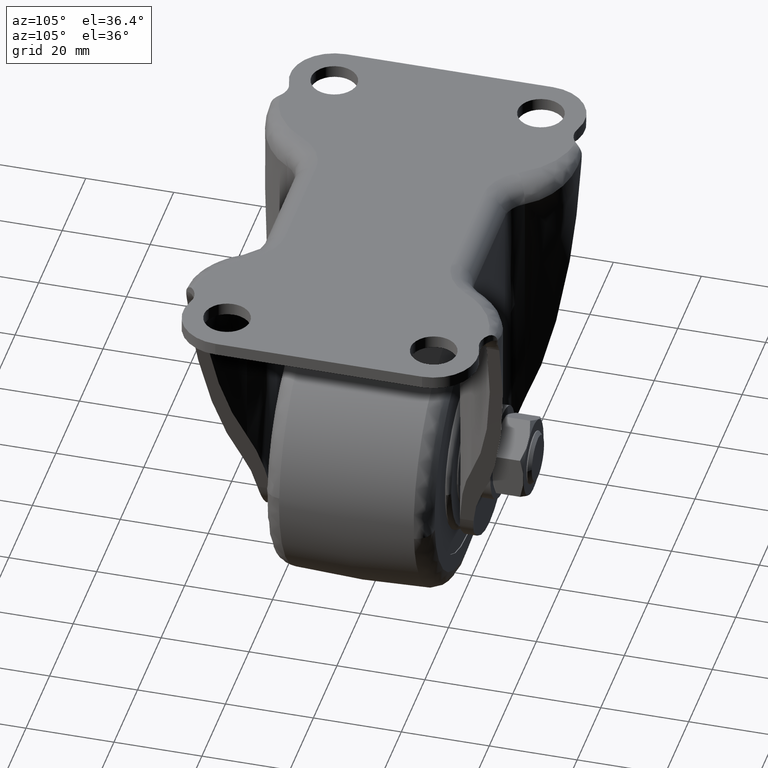
[diagram: clean part render]
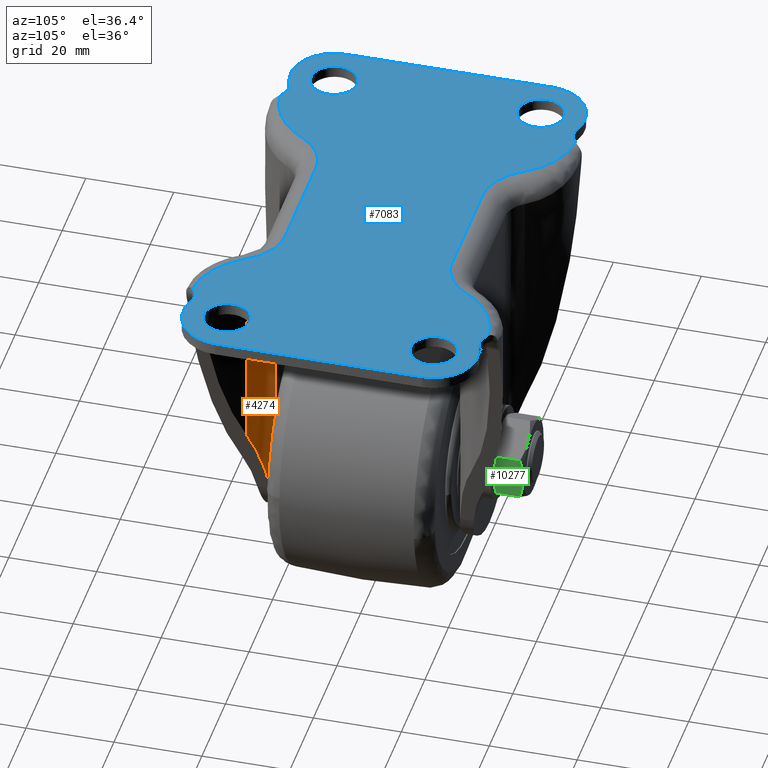
[diagram: same view with three faces highlighted in distinct colors, each labeled with its STEP entity id]
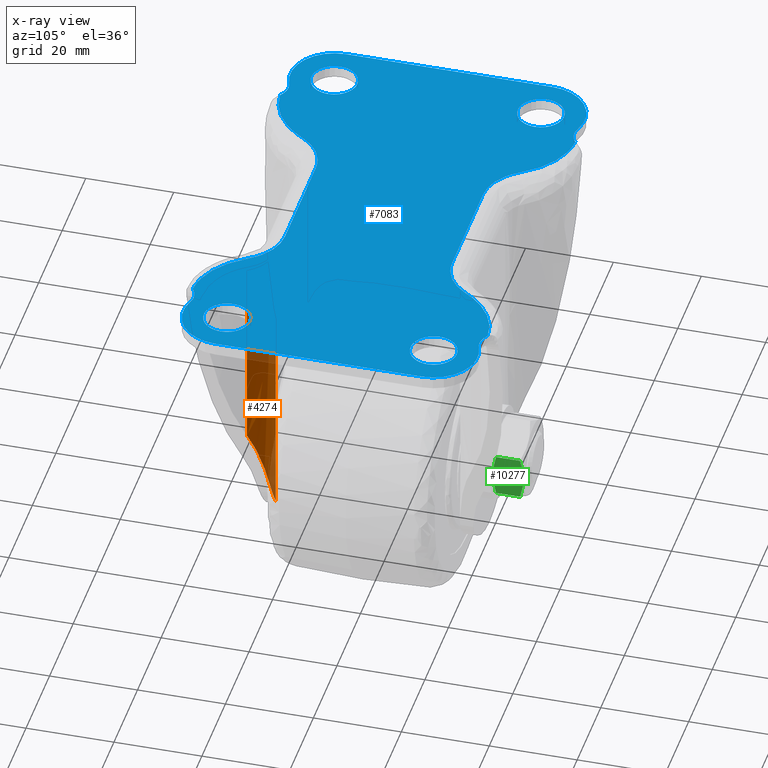
[diagram: x-ray of the same camera — body ghosted, the three highlighted faces saturated]
A machine part, auxiliary view with three faces highlighted in distinct colors.
The next image is the same camera in x-ray (body ghosted, the three faces saturated) — at least one of them is partly hidden behind the body in this view.
Their STEP definitions:

[orange] entity #4274 — the highlighted face is a freeform B-spline surface patch.
#3651=CARTESIAN_POINT('',(13.112529342704841,-21.100000000000001,-72.615372478840001));
#3652=VERTEX_POINT('',#3651);
#3653=CARTESIAN_POINT('',(15.788895217503899,-21.489058556165649,-67.391547508985795));
#3654=VERTEX_POINT('',#3653);
#3655=CARTESIAN_POINT('',(13.112529342704800,-21.100000000000001,-72.615372478839987));
#3656=CARTESIAN_POINT('',(13.262377682579061,-21.100000000000001,-72.419188794697448));
#3657=CARTESIAN_POINT('',(13.408182264475281,-21.103580292559009,-72.219176181642979));
#3658=CARTESIAN_POINT('',(13.620687496377720,-21.113477545811229,-71.913359515759140));
#3659=CARTESIAN_POINT('',(13.690562948580830,-21.117538128247290,-71.810337121695397));
#3660=CARTESIAN_POINT('',(13.827549460056209,-21.126982350587500,-71.603376034765247));
#3661=CARTESIAN_POINT('',(13.894727559515809,-21.132367323510909,-71.499346473165232));
#3662=CARTESIAN_POINT('',(14.224135809730280,-21.162208652223981,-70.976463162988836));
#3663=CARTESIAN_POINT('',(14.466970524330190,-21.195344305237079,-70.549420609718027));
#3664=CARTESIAN_POINT('',(14.912790391186601,-21.271230381579251,-69.677820661432634));
#3665=CARTESIAN_POINT('',(15.115770835520641,-21.314004683583459,-69.233263107492888));
#3666=CARTESIAN_POINT('',(15.482194059944909,-21.401638853088269,-68.326144136321290));
#3667=CARTESIAN_POINT('',(15.645637757706330,-21.446509242189720,-67.863584024807125));
#3668=CARTESIAN_POINT('',(15.788895217503921,-21.489058556165670,-67.391547508985795));
#3669=B_SPLINE_CURVE_WITH_KNOTS('',3,(#3655,#3656,#3657,#3658,#3659,#3660,#3661,#3662,#3663,#3664,#3665,#3666,#3667,#3668),.UNSPECIFIED.,.F.,.U.,(4,2,2,2,2,2,4),(0.0,0.124999999999994,0.187499999999991,0.249999999999988,0.499999999999992,0.749999999999996,1.0),.UNSPECIFIED.);
#3670=EDGE_CURVE('',#3652,#3654,#3669,.T.);
#3914=CARTESIAN_POINT('',(21.080107333667101,-25.512244897959199,-49.956885919186902));
#3915=VERTEX_POINT('',#3914);
#3916=CARTESIAN_POINT('',(21.080107333667080,-25.512244897959199,-49.956885919186860));
#3917=CARTESIAN_POINT('',(19.194841077492001,-22.500668422671076,-56.168880158214648));
#3918=CARTESIAN_POINT('',(15.788895217503891,-21.489058556165670,-67.391547508985795));
#3926=(BOUNDED_CURVE()B_SPLINE_CURVE(2,(#3916,#3917,#3918),.UNSPECIFIED.,.F.,.U.)CURVE()GEOMETRIC_REPRESENTATION_ITEM()QUASI_UNIFORM_CURVE()RATIONAL_B_SPLINE_CURVE((1.0,0.935409879223287,1.0))REPRESENTATION_ITEM(''));
#3927=EDGE_CURVE('',#3915,#3654,#3926,.T.);
#4233=CARTESIAN_POINT('',(12.866466028610819,-21.103221145229771,-74.308256790811001));
#4234=CARTESIAN_POINT('',(12.866466028610819,-21.103221145229771,-3.164793580229727));
#4235=CARTESIAN_POINT('',(18.512620388153156,-20.955371390003265,-74.308256790811001));
#4236=CARTESIAN_POINT('',(18.512620388153156,-20.955371390003265,-3.164793580229727));
#4237=CARTESIAN_POINT('',(21.293872884539891,-25.871218535027410,-74.308256790811001));
#4238=CARTESIAN_POINT('',(21.293872884539891,-25.871218535027410,-3.164793580229727));
#4246=(BOUNDED_SURFACE()B_SPLINE_SURFACE(1,2,((#4233,#4235,#4237),(#4234,#4236,#4238)),.UNSPECIFIED.,.F.,.F.,.U.)B_SPLINE_SURFACE_WITH_KNOTS((2,2),(3,3),(0.0,71.143463210581288),(0.0,10.427402856649930),.UNSPECIFIED.)GEOMETRIC_REPRESENTATION_ITEM()RATIONAL_B_SPLINE_SURFACE(((1.0,0.857167300702112,1.0),(1.0,0.857167300702112,1.0)))REPRESENTATION_ITEM('')SURFACE());
#4247=CARTESIAN_POINT('',(13.112529342704841,-21.100000000000001,-4.900000000000000));
#4248=VERTEX_POINT('',#4247);
#4249=CARTESIAN_POINT('',(13.112529342704841,-21.100000000000001,-72.615372478840001));
#4250=CARTESIAN_POINT('',(13.112529342704841,-21.100000000000001,-4.900000000000000));
#4251=QUASI_UNIFORM_CURVE('',1,(#4249,#4250),.UNSPECIFIED.,.F.,.U.);
#4252=EDGE_CURVE('',#3652,#4248,#4251,.T.);
#4253=ORIENTED_EDGE('',*,*,#4252,.T.);
#4254=CARTESIAN_POINT('',(21.080107333667101,-25.512244897959199,-5.0));
#4255=VERTEX_POINT('',#4254);
#4256=CARTESIAN_POINT('',(13.112529342704860,-21.100000000000001,-4.900000000000016));
#4257=CARTESIAN_POINT('',(14.697171330926320,-21.100000000000001,-4.916666666666682));
#4258=CARTESIAN_POINT('',(16.280106511327521,-21.509029801425509,-4.933333333333346));
#4259=CARTESIAN_POINT('',(19.052652437136089,-23.044396211316030,-4.966666666666675));
#4260=CARTESIAN_POINT('',(20.239276890937319,-24.169079086373230,-4.983333333333340));
#4261=CARTESIAN_POINT('',(21.080107333667069,-25.512244897959182,-5.000000000000004));
#4262=B_SPLINE_CURVE_WITH_KNOTS('',3,(#4256,#4257,#4258,#4259,#4260,#4261),.UNSPECIFIED.,.F.,.U.,(4,2,4),(0.0,0.500000000000000,1.0),.UNSPECIFIED.);
#4263=EDGE_CURVE('',#4248,#4255,#4262,.T.);
#4264=ORIENTED_EDGE('',*,*,#4263,.T.);
#4265=CARTESIAN_POINT('',(21.080107333667101,-25.512244897959199,-49.956885919186902));
#4266=CARTESIAN_POINT('',(21.080107333667101,-25.512244897959199,-5.0));
#4267=QUASI_UNIFORM_CURVE('',1,(#4265,#4266),.UNSPECIFIED.,.F.,.U.);
#4268=EDGE_CURVE('',#3915,#4255,#4267,.T.);
#4269=ORIENTED_EDGE('',*,*,#4268,.F.);
#4270=ORIENTED_EDGE('',*,*,#3927,.T.);
#4271=ORIENTED_EDGE('',*,*,#3670,.F.);
#4272=EDGE_LOOP('',(#4253,#4264,#4269,#4270,#4271));
#4273=FACE_OUTER_BOUND('',#4272,.T.);
#4274=ADVANCED_FACE('',(#4273),#4246,.T.);

[blue] entity #7083 — the highlighted face is a freeform B-spline surface patch.
#2559=CARTESIAN_POINT('',(-45.820409832896729,18.259792308305919,1.318390E-016));
#2560=VERTEX_POINT('',#2559);
#2561=CARTESIAN_POINT('',(-40.249905000000012,23.500000000000000,0.0));
#2562=VERTEX_POINT('',#2561);
#2563=CARTESIAN_POINT('',(-45.820409832896722,18.259792308305911,0.0));
#2564=CARTESIAN_POINT('',(-45.660307007487432,18.250000000000000,0.0));
#2565=CARTESIAN_POINT('',(-45.499904999999998,18.250000000000000,0.0));
#2566=CARTESIAN_POINT('',(-40.249905000000012,18.250000000000000,0.0));
#2567=CARTESIAN_POINT('',(-40.249905000000012,23.500000000000000,0.0));
#2575=(BOUNDED_CURVE()B_SPLINE_CURVE(2,(#2563,#2564,#2565,#2566,#2567),.UNSPECIFIED.,.F.,.U.)B_SPLINE_CURVE_WITH_KNOTS((3,2,3),(0.239332962230815,0.250000000000000,0.500000000000000),.UNSPECIFIED.)CURVE()GEOMETRIC_REPRESENTATION_ITEM()RATIONAL_B_SPLINE_CURVE((0.976072041649297,0.987502787890315,1.0,0.707106781186547,1.0))REPRESENTATION_ITEM(''));
#2576=EDGE_CURVE('',#2560,#2562,#2575,.T.);
#2578=CARTESIAN_POINT('',(-45.179400167103267,28.740207691694081,1.318390E-016));
#2579=VERTEX_POINT('',#2578);
#2580=CARTESIAN_POINT('',(-40.249905000000012,23.500000000000000,0.0));
#2581=CARTESIAN_POINT('',(-40.249904999999998,28.438706850935048,0.0));
#2582=CARTESIAN_POINT('',(-45.179400167103260,28.740207691694089,0.0));
#2590=(BOUNDED_CURVE()B_SPLINE_CURVE(2,(#2580,#2581,#2582),.UNSPECIFIED.,.F.,.U.)B_SPLINE_CURVE_WITH_KNOTS((3,3),(0.500000000000000,0.739332962230815),.UNSPECIFIED.)CURVE()GEOMETRIC_REPRESENTATION_ITEM()RATIONAL_B_SPLINE_CURVE((1.0,0.719603993296233,0.976072041649297))REPRESENTATION_ITEM(''));
#2591=EDGE_CURVE('',#2562,#2579,#2590,.T.);
#2658=CARTESIAN_POINT('',(-50.749904999999998,23.500000000000000,0.0));
#2659=VERTEX_POINT('',#2658);
#2660=CARTESIAN_POINT('',(-50.749904999999998,23.500000000000000,0.0));
#2661=CARTESIAN_POINT('',(-50.749904999999984,18.561293149064948,0.0));
#2662=CARTESIAN_POINT('',(-45.820409832896736,18.259792308305915,0.0));
#2670=(BOUNDED_CURVE()B_SPLINE_CURVE(2,(#2660,#2661,#2662),.UNSPECIFIED.,.F.,.U.)B_SPLINE_CURVE_WITH_KNOTS((3,3),(0.0,0.239332962230815),.UNSPECIFIED.)CURVE()GEOMETRIC_REPRESENTATION_ITEM()RATIONAL_B_SPLINE_CURVE((1.0,0.719603993296233,0.976072041649297))REPRESENTATION_ITEM(''));
#2671=EDGE_CURVE('',#2659,#2560,#2670,.T.);
#2705=CARTESIAN_POINT('',(-45.179400167103267,28.740207691694085,0.0));
#2706=CARTESIAN_POINT('',(-45.339502992512564,28.750000000000000,0.0));
#2707=CARTESIAN_POINT('',(-45.499904999999998,28.750000000000000,0.0));
#2708=CARTESIAN_POINT('',(-50.749904999999984,28.750000000000000,0.0));
#2709=CARTESIAN_POINT('',(-50.749904999999998,23.500000000000000,0.0));
#2717=(BOUNDED_CURVE()B_SPLINE_CURVE(2,(#2705,#2706,#2707,#2708,#2709),.UNSPECIFIED.,.F.,.U.)B_SPLINE_CURVE_WITH_KNOTS((3,2,3),(0.739332962230815,0.750000000000000,1.0),.UNSPECIFIED.)CURVE()GEOMETRIC_REPRESENTATION_ITEM()RATIONAL_B_SPLINE_CURVE((0.976072041649297,0.987502787890314,1.0,0.707106781186547,1.0))REPRESENTATION_ITEM(''));
#2718=EDGE_CURVE('',#2579,#2659,#2717,.T.);
#2741=CARTESIAN_POINT('',(-45.820409832896729,-28.740207691694081,1.318390E-016));
#2742=VERTEX_POINT('',#2741);
#2743=CARTESIAN_POINT('',(-40.249905000000012,-23.500000000000000,0.0));
#2744=VERTEX_POINT('',#2743);
#2745=CARTESIAN_POINT('',(-45.820409832896722,-28.740207691694078,0.0));
#2746=CARTESIAN_POINT('',(-45.660307007487432,-28.749999999999996,0.0));
#2747=CARTESIAN_POINT('',(-45.499904999999998,-28.750000000000000,0.0));
#2748=CARTESIAN_POINT('',(-40.249905000000012,-28.750000000000000,0.0));
#2749=CARTESIAN_POINT('',(-40.249905000000012,-23.500000000000000,0.0));
#2757=(BOUNDED_CURVE()B_SPLINE_CURVE(2,(#2745,#2746,#2747,#2748,#2749),.UNSPECIFIED.,.F.,.U.)B_SPLINE_CURVE_WITH_KNOTS((3,2,3),(0.239332962230815,0.250000000000000,0.500000000000000),.UNSPECIFIED.)CURVE()GEOMETRIC_REPRESENTATION_ITEM()RATIONAL_B_SPLINE_CURVE((0.976072041649297,0.987502787890315,1.0,0.707106781186547,1.0))REPRESENTATION_ITEM(''));
#2758=EDGE_CURVE('',#2742,#2744,#2757,.T.);
#2760=CARTESIAN_POINT('',(-45.179400167103267,-18.259792308305919,1.318390E-016));
#2761=VERTEX_POINT('',#2760);
#2762=CARTESIAN_POINT('',(-40.249905000000012,-23.500000000000000,0.0));
#2763=CARTESIAN_POINT('',(-40.249904999999998,-18.561293149064937,0.0));
#2764=CARTESIAN_POINT('',(-45.179400167103260,-18.259792308305922,0.0));
#2772=(BOUNDED_CURVE()B_SPLINE_CURVE(2,(#2762,#2763,#2764),.UNSPECIFIED.,.F.,.U.)B_SPLINE_CURVE_WITH_KNOTS((3,3),(0.500000000000000,0.739332962230815),.UNSPECIFIED.)CURVE()GEOMETRIC_REPRESENTATION_ITEM()RATIONAL_B_SPLINE_CURVE((1.0,0.719603993296233,0.976072041649297))REPRESENTATION_ITEM(''));
#2773=EDGE_CURVE('',#2744,#2761,#2772,.T.);
#2840=CARTESIAN_POINT('',(-50.749904999999998,-23.500000000000000,0.0));
#2841=VERTEX_POINT('',#2840);
#2842=CARTESIAN_POINT('',(-50.749904999999998,-23.500000000000000,0.0));
#2843=CARTESIAN_POINT('',(-50.749904999999984,-28.438706850935045,0.0));
#2844=CARTESIAN_POINT('',(-45.820409832896736,-28.740207691694085,0.0));
#2852=(BOUNDED_CURVE()B_SPLINE_CURVE(2,(#2842,#2843,#2844),.UNSPECIFIED.,.F.,.U.)B_SPLINE_CURVE_WITH_KNOTS((3,3),(0.0,0.239332962230815),.UNSPECIFIED.)CURVE()GEOMETRIC_REPRESENTATION_ITEM()RATIONAL_B_SPLINE_CURVE((1.0,0.719603993296233,0.976072041649297))REPRESENTATION_ITEM(''));
#2853=EDGE_CURVE('',#2841,#2742,#2852,.T.);
#2887=CARTESIAN_POINT('',(-45.179400167103267,-18.259792308305915,0.0));
#2888=CARTESIAN_POINT('',(-45.339502992512564,-18.250000000000000,0.0));
#2889=CARTESIAN_POINT('',(-45.499904999999998,-18.250000000000000,0.0));
#2890=CARTESIAN_POINT('',(-50.749904999999984,-18.250000000000000,0.0));
#2891=CARTESIAN_POINT('',(-50.749904999999998,-23.500000000000000,0.0));
#2899=(BOUNDED_CURVE()B_SPLINE_CURVE(2,(#2887,#2888,#2889,#2890,#2891),.UNSPECIFIED.,.F.,.U.)B_SPLINE_CURVE_WITH_KNOTS((3,2,3),(0.739332962230815,0.750000000000000,1.0),.UNSPECIFIED.)CURVE()GEOMETRIC_REPRESENTATION_ITEM()RATIONAL_B_SPLINE_CURVE((0.976072041649297,0.987502787890314,1.0,0.707106781186547,1.0))REPRESENTATION_ITEM(''));
#2900=EDGE_CURVE('',#2761,#2841,#2899,.T.);
#2923=CARTESIAN_POINT('',(45.179590167103363,18.259792308305919,1.318390E-016));
#2924=VERTEX_POINT('',#2923);
#2925=CARTESIAN_POINT('',(50.750095000000087,23.500000000000000,0.0));
#2926=VERTEX_POINT('',#2925);
#2927=CARTESIAN_POINT('',(45.179590167103363,18.259792308305915,0.0));
#2928=CARTESIAN_POINT('',(45.339692992512667,18.250000000000000,0.0));
#2929=CARTESIAN_POINT('',(45.500095000000087,18.250000000000000,0.0));
#2930=CARTESIAN_POINT('',(50.750095000000108,18.250000000000000,0.0));
#2931=CARTESIAN_POINT('',(50.750095000000087,23.500000000000000,0.0));
#2939=(BOUNDED_CURVE()B_SPLINE_CURVE(2,(#2927,#2928,#2929,#2930,#2931),.UNSPECIFIED.,.F.,.U.)B_SPLINE_CURVE_WITH_KNOTS((3,2,3),(0.239332962230815,0.250000000000000,0.500000000000000),.UNSPECIFIED.)CURVE()GEOMETRIC_REPRESENTATION_ITEM()RATIONAL_B_SPLINE_CURVE((0.976072041649297,0.987502787890314,1.0,0.707106781186547,1.0))REPRESENTATION_ITEM(''));
#2940=EDGE_CURVE('',#2924,#2926,#2939,.T.);
#2942=CARTESIAN_POINT('',(45.820599832896832,28.740207691694081,1.318390E-016));
#2943=VERTEX_POINT('',#2942);
#2944=CARTESIAN_POINT('',(50.750095000000087,23.500000000000000,0.0));
#2945=CARTESIAN_POINT('',(50.750095000000101,28.438706850935063,0.0));
#2946=CARTESIAN_POINT('',(45.820599832896811,28.740207691694085,0.0));
#2954=(BOUNDED_CURVE()B_SPLINE_CURVE(2,(#2944,#2945,#2946),.UNSPECIFIED.,.F.,.U.)B_SPLINE_CURVE_WITH_KNOTS((3,3),(0.500000000000000,0.739332962230815),.UNSPECIFIED.)CURVE()GEOMETRIC_REPRESENTATION_ITEM()RATIONAL_B_SPLINE_CURVE((1.0,0.719603993296233,0.976072041649298))REPRESENTATION_ITEM(''));
#2955=EDGE_CURVE('',#2926,#2943,#2954,.T.);
#3022=CARTESIAN_POINT('',(40.250095000000087,23.500000000000000,0.0));
#3023=VERTEX_POINT('',#3022);
#3024=CARTESIAN_POINT('',(40.250095000000087,23.500000000000000,0.0));
#3025=CARTESIAN_POINT('',(40.250095000000087,18.561293149064934,0.0));
#3026=CARTESIAN_POINT('',(45.179590167103363,18.259792308305911,0.0));
#3034=(BOUNDED_CURVE()B_SPLINE_CURVE(2,(#3024,#3025,#3026),.UNSPECIFIED.,.F.,.U.)B_SPLINE_CURVE_WITH_KNOTS((3,3),(0.0,0.239332962230815),.UNSPECIFIED.)CURVE()GEOMETRIC_REPRESENTATION_ITEM()RATIONAL_B_SPLINE_CURVE((1.0,0.719603993296233,0.976072041649298))REPRESENTATION_ITEM(''));
#3035=EDGE_CURVE('',#3023,#2924,#3034,.T.);
#3069=CARTESIAN_POINT('',(45.820599832896839,28.740207691694089,0.0));
#3070=CARTESIAN_POINT('',(45.660497007487528,28.750000000000007,0.0));
#3071=CARTESIAN_POINT('',(45.500095000000087,28.750000000000000,0.0));
#3072=CARTESIAN_POINT('',(40.250095000000087,28.750000000000000,0.0));
#3073=CARTESIAN_POINT('',(40.250095000000087,23.500000000000000,0.0));
#3081=(BOUNDED_CURVE()B_SPLINE_CURVE(2,(#3069,#3070,#3071,#3072,#3073),.UNSPECIFIED.,.F.,.U.)B_SPLINE_CURVE_WITH_KNOTS((3,2,3),(0.739332962230815,0.750000000000000,1.0),.UNSPECIFIED.)CURVE()GEOMETRIC_REPRESENTATION_ITEM()RATIONAL_B_SPLINE_CURVE((0.976072041649297,0.987502787890315,1.0,0.707106781186547,1.0))REPRESENTATION_ITEM(''));
#3082=EDGE_CURVE('',#2943,#3023,#3081,.T.);
#3105=CARTESIAN_POINT('',(45.179590167103363,-28.740207691694089,1.318390E-016));
#3106=VERTEX_POINT('',#3105);
#3107=CARTESIAN_POINT('',(50.750095000000087,-23.500000000000000,0.0));
#3108=VERTEX_POINT('',#3107);
#3109=CARTESIAN_POINT('',(45.179590167103363,-28.740207691694085,0.0));
#3110=CARTESIAN_POINT('',(45.339692992512667,-28.750000000000000,0.0));
#3111=CARTESIAN_POINT('',(45.500095000000087,-28.750000000000000,0.0));
#3112=CARTESIAN_POINT('',(50.750095000000108,-28.750000000000000,0.0));
#3113=CARTESIAN_POINT('',(50.750095000000087,-23.500000000000000,0.0));
#3121=(BOUNDED_CURVE()B_SPLINE_CURVE(2,(#3109,#3110,#3111,#3112,#3113),.UNSPECIFIED.,.F.,.U.)B_SPLINE_CURVE_WITH_KNOTS((3,2,3),(0.239332962230815,0.250000000000000,0.500000000000000),.UNSPECIFIED.)CURVE()GEOMETRIC_REPRESENTATION_ITEM()RATIONAL_B_SPLINE_CURVE((0.976072041649297,0.987502787890314,1.0,0.707106781186547,1.0))REPRESENTATION_ITEM(''));
#3122=EDGE_CURVE('',#3106,#3108,#3121,.T.);
#3124=CARTESIAN_POINT('',(45.820599832896832,-18.259792308305919,1.318390E-016));
#3125=VERTEX_POINT('',#3124);
#3126=CARTESIAN_POINT('',(50.750095000000087,-23.500000000000000,0.0));
#3127=CARTESIAN_POINT('',(50.750095000000101,-18.561293149064934,0.0));
#3128=CARTESIAN_POINT('',(45.820599832896811,-18.259792308305911,0.0));
#3136=(BOUNDED_CURVE()B_SPLINE_CURVE(2,(#3126,#3127,#3128),.UNSPECIFIED.,.F.,.U.)B_SPLINE_CURVE_WITH_KNOTS((3,3),(0.500000000000000,0.739332962230815),.UNSPECIFIED.)CURVE()GEOMETRIC_REPRESENTATION_ITEM()RATIONAL_B_SPLINE_CURVE((1.0,0.719603993296233,0.976072041649298))REPRESENTATION_ITEM(''));
#3137=EDGE_CURVE('',#3108,#3125,#3136,.T.);
#3204=CARTESIAN_POINT('',(40.250095000000087,-23.500000000000000,0.0));
#3205=VERTEX_POINT('',#3204);
#3206=CARTESIAN_POINT('',(40.250095000000087,-23.500000000000000,0.0));
#3207=CARTESIAN_POINT('',(40.250095000000087,-28.438706850935063,0.0));
#3208=CARTESIAN_POINT('',(45.179590167103385,-28.740207691694089,0.0));
#3216=(BOUNDED_CURVE()B_SPLINE_CURVE(2,(#3206,#3207,#3208),.UNSPECIFIED.,.F.,.U.)B_SPLINE_CURVE_WITH_KNOTS((3,3),(0.0,0.239332962230815),.UNSPECIFIED.)CURVE()GEOMETRIC_REPRESENTATION_ITEM()RATIONAL_B_SPLINE_CURVE((1.0,0.719603993296233,0.976072041649298))REPRESENTATION_ITEM(''));
#3217=EDGE_CURVE('',#3205,#3106,#3216,.T.);
#3251=CARTESIAN_POINT('',(45.820599832896839,-18.259792308305922,0.0));
#3252=CARTESIAN_POINT('',(45.660497007487528,-18.250000000000000,0.0));
#3253=CARTESIAN_POINT('',(45.500095000000087,-18.250000000000000,0.0));
#3254=CARTESIAN_POINT('',(40.250095000000087,-18.250000000000000,0.0));
#3255=CARTESIAN_POINT('',(40.250095000000087,-23.500000000000000,0.0));
#3263=(BOUNDED_CURVE()B_SPLINE_CURVE(2,(#3251,#3252,#3253,#3254,#3255),.UNSPECIFIED.,.F.,.U.)B_SPLINE_CURVE_WITH_KNOTS((3,2,3),(0.739332962230815,0.750000000000000,1.0),.UNSPECIFIED.)CURVE()GEOMETRIC_REPRESENTATION_ITEM()RATIONAL_B_SPLINE_CURVE((0.976072041649297,0.987502787890315,1.0,0.707106781186547,1.0))REPRESENTATION_ITEM(''));
#3264=EDGE_CURVE('',#3125,#3205,#3263,.T.);
#4358=CARTESIAN_POINT('',(-55.499905000000012,-23.500000000000000,0.0));
#4359=VERTEX_POINT('',#4358);
#4360=CARTESIAN_POINT('',(-41.883508983008703,-32.823179628913557,0.0));
#4361=VERTEX_POINT('',#4360);
#4362=CARTESIAN_POINT('',(-55.499905000000012,-23.500000000000000,0.0));
#4363=CARTESIAN_POINT('',(-55.500278196082867,-24.460316381030051,0.0));
#4364=CARTESIAN_POINT('',(-55.246789352321443,-26.203864384008462,0.0));
#4365=CARTESIAN_POINT('',(-54.403331376298603,-28.167840847522982,0.0));
#4366=CARTESIAN_POINT('',(-53.432262029972932,-29.649935437684441,0.0));
#4367=CARTESIAN_POINT('',(-52.470065464621001,-30.729882750802961,0.0));
#4368=CARTESIAN_POINT('',(-51.213360542768477,-31.753957458831369,0.0));
#4369=CARTESIAN_POINT('',(-49.640075794261918,-32.680564839039533,0.0));
#4370=CARTESIAN_POINT('',(-47.687593279586252,-33.343791788695583,0.0));
#4371=CARTESIAN_POINT('',(-45.742000096122993,-33.546333433216169,0.0));
#4372=CARTESIAN_POINT('',(-43.821192178795613,-33.417867727184912,0.0));
#4373=CARTESIAN_POINT('',(-42.613832534247749,-33.106666759145043,0.0));
#4374=CARTESIAN_POINT('',(-41.883508983008703,-32.823179628913557,0.0));
#4375=B_SPLINE_CURVE_WITH_KNOTS('',3,(#4362,#4363,#4364,#4365,#4366,#4367,#4368,#4369,#4370,#4371,#4372,#4373,#4374),.UNSPECIFIED.,.F.,.U.,(4,1,1,1,1,1,1,1,1,1,4),(0.000000104842020,2.880891366599464,5.231136969330979,6.368343491444483,8.187879028276006,9.552532496265286,11.220401519337230,13.646434593703489,15.693418021507650,17.058079484506351,19.408269017228701),.UNSPECIFIED.);
#4376=EDGE_CURVE('',#4359,#4361,#4375,.T.);
#4463=CARTESIAN_POINT('',(-37.161353402992098,-33.556329244536649,0.0));
#4464=VERTEX_POINT('',#4463);
#4485=CARTESIAN_POINT('',(-37.161353402992091,-33.556329244536649,0.0));
#4486=CARTESIAN_POINT('',(-39.310566767351574,-31.825153326030541,0.0));
#4487=CARTESIAN_POINT('',(-41.883508983008703,-32.823179628913543,0.0));
#4495=(BOUNDED_CURVE()B_SPLINE_CURVE(2,(#4485,#4486,#4487),.UNSPECIFIED.,.F.,.U.)CURVE()GEOMETRIC_REPRESENTATION_ITEM()QUASI_UNIFORM_CURVE()RATIONAL_B_SPLINE_CURVE((1.0,0.865797901622570,1.0))REPRESENTATION_ITEM(''));
#4496=EDGE_CURVE('',#4464,#4361,#4495,.T.);
#4516=CARTESIAN_POINT('',(-41.883508782540112,32.823179629200652,0.0));
#4517=VERTEX_POINT('',#4516);
#4518=CARTESIAN_POINT('',(-55.499905000000012,23.500000000000000,0.0));
#4519=VERTEX_POINT('',#4518);
#4520=CARTESIAN_POINT('',(-41.883508782540112,32.823179629200652,0.0));
#4521=CARTESIAN_POINT('',(-42.472492201810240,33.051728680242533,0.0));
#4522=CARTESIAN_POINT('',(-43.474114836118169,33.334458169527522,0.0));
#4523=CARTESIAN_POINT('',(-45.208512471580192,33.543418200212123,0.0));
#4524=CARTESIAN_POINT('',(-46.706254746633668,33.473031460312917,0.0));
#4525=CARTESIAN_POINT('',(-48.488756959034937,33.093218005912860,0.0));
#4526=CARTESIAN_POINT('',(-50.072682632651748,32.466588435849602,0.0));
#4527=CARTESIAN_POINT('',(-51.478683355553791,31.557591631126439,0.0));
#4528=CARTESIAN_POINT('',(-52.587854016474850,30.596287737559528,0.0));
#4529=CARTESIAN_POINT('',(-53.545068789276357,29.513756614187368,0.0));
#4530=CARTESIAN_POINT('',(-54.435588240713372,28.096602614755799,0.0));
#4531=CARTESIAN_POINT('',(-55.014836129358073,26.689090475843091,0.0));
#4532=CARTESIAN_POINT('',(-55.403779949398483,25.142585482857349,0.0));
#4533=CARTESIAN_POINT('',(-55.499973748953828,24.131778415267849,0.0));
#4534=CARTESIAN_POINT('',(-55.499905000000012,23.500000000000000,0.0));
#4535=B_SPLINE_CURVE_WITH_KNOTS('',3,(#4520,#4521,#4522,#4523,#4524,#4525,#4526,#4527,#4528,#4529,#4530,#4531,#4532,#4533,#4534),.UNSPECIFIED.,.F.,.U.,(4,1,1,1,1,1,1,1,1,1,1,1,4),(0.000000128442966,1.895301773626613,3.108353019985504,5.231137036880631,6.368343568548973,8.566973561792308,10.310593766237620,11.372017595776519,12.964099439703521,14.632017487934050,16.375749248277931,17.512946186762751,19.408269204163879),.UNSPECIFIED.);
#4536=EDGE_CURVE('',#4517,#4519,#4535,.T.);
#4578=CARTESIAN_POINT('',(-55.499905000000012,-23.500000000000000,0.0));
#4579=CARTESIAN_POINT('',(-55.499905000000012,23.500000000000000,0.0));
#4580=QUASI_UNIFORM_CURVE('',1,(#4578,#4579),.UNSPECIFIED.,.F.,.U.);
#4581=EDGE_CURVE('',#4359,#4519,#4580,.T.);
#5303=CARTESIAN_POINT('',(37.161543169836953,33.556329432341613,0.0));
#5304=VERTEX_POINT('',#5303);
#5369=CARTESIAN_POINT('',(22.860098161435250,24.397959183673450,0.0));
#5370=VERTEX_POINT('',#5369);
#5384=CARTESIAN_POINT('',(37.161543169836953,33.556329432341613,0.0));
#5385=CARTESIAN_POINT('',(36.608620594704497,33.534202486196207,0.0));
#5386=CARTESIAN_POINT('',(35.320966604165307,33.416515755185920,0.0));
#5387=CARTESIAN_POINT('',(33.695036015703657,33.061203260235573,0.0));
#5388=CARTESIAN_POINT('',(32.162696183062486,32.551153346587263,0.0));
#5389=CARTESIAN_POINT('',(30.846067937734020,31.990246457425471,0.0));
#5390=CARTESIAN_POINT('',(29.549690963235399,31.281407893665609,0.0));
#5391=CARTESIAN_POINT('',(28.704098459019960,30.719780709719711,0.0));
#5392=CARTESIAN_POINT('',(27.544535977598059,29.883227347934760,0.0));
#5393=CARTESIAN_POINT('',(26.287255674720530,28.791616339022578,0.0));
#5394=CARTESIAN_POINT('',(24.463694063219901,26.768410378683129,0.0));
#5395=CARTESIAN_POINT('',(23.447317639532610,25.335839815187722,0.0));
#5396=CARTESIAN_POINT('',(22.860098161435250,24.397959183673450,0.0));
#5397=B_SPLINE_CURVE_WITH_KNOTS('',3,(#5384,#5385,#5386,#5387,#5388,#5389,#5390,#5391,#5392,#5393,#5394,#5395,#5396),.UNSPECIFIED.,.F.,.U.,(4,1,1,1,1,1,1,1,1,1,4),(0.000052007675439,1.660194254120384,3.873681265394085,4.980436147180802,6.502202867893807,8.162329305314300,9.407386642849701,9.545736493024876,12.450983675885510,14.387782762139461,17.708069200301690),.UNSPECIFIED.);
#5398=EDGE_CURVE('',#5304,#5370,#5397,.T.);
#5422=CARTESIAN_POINT('',(13.112529342704841,19.0,0.0));
#5423=VERTEX_POINT('',#5422);
#5437=CARTESIAN_POINT('',(22.860098161435229,24.397959183673471,0.0));
#5438=CARTESIAN_POINT('',(19.480940970942036,18.999999999999996,0.0));
#5439=CARTESIAN_POINT('',(13.112529342704841,19.0,0.0));
#5447=(BOUNDED_CURVE()B_SPLINE_CURVE(2,(#5437,#5438,#5439),.UNSPECIFIED.,.F.,.U.)CURVE()GEOMETRIC_REPRESENTATION_ITEM()QUASI_UNIFORM_CURVE()RATIONAL_B_SPLINE_CURVE((1.0,0.874817765279707,1.0))REPRESENTATION_ITEM(''));
#5448=EDGE_CURVE('',#5370,#5423,#5447,.T.);
#5483=CARTESIAN_POINT('',(-13.112339505611899,19.0,0.0));
#5484=VERTEX_POINT('',#5483);
#5498=CARTESIAN_POINT('',(13.112529342704841,19.0,0.0));
#5499=CARTESIAN_POINT('',(-13.112339505611899,19.0,0.0));
#5500=QUASI_UNIFORM_CURVE('',1,(#5498,#5499),.UNSPECIFIED.,.F.,.U.);
#5501=EDGE_CURVE('',#5423,#5484,#5500,.T.);
#5531=CARTESIAN_POINT('',(-22.859907161435100,24.397959183673450,0.0));
#5532=VERTEX_POINT('',#5531);
#5546=CARTESIAN_POINT('',(-13.112339505611899,19.0,0.0));
#5547=CARTESIAN_POINT('',(-19.480750374083037,19.000000643988827,0.0));
#5548=CARTESIAN_POINT('',(-22.859907161435089,24.397959183673461,0.0));
#5556=(BOUNDED_CURVE()B_SPLINE_CURVE(2,(#5546,#5547,#5548),.UNSPECIFIED.,.F.,.U.)CURVE()GEOMETRIC_REPRESENTATION_ITEM()QUASI_UNIFORM_CURVE()RATIONAL_B_SPLINE_CURVE((1.0,0.874817789774179,1.0))REPRESENTATION_ITEM(''));
#5557=EDGE_CURVE('',#5484,#5532,#5556,.T.);
#5681=CARTESIAN_POINT('',(-37.161353401712297,33.556329245567497,0.0));
#5682=VERTEX_POINT('',#5681);
#5706=CARTESIAN_POINT('',(-22.859907161435100,24.397959183673450,0.0));
#5707=CARTESIAN_POINT('',(-23.496021819817379,25.413893264916421,0.0));
#5708=CARTESIAN_POINT('',(-24.573705936295660,26.917588579391069,0.0));
#5709=CARTESIAN_POINT('',(-26.424006960610409,28.916501807500069,0.0));
#5710=CARTESIAN_POINT('',(-27.619395207134371,29.937121471266099,0.0));
#5711=CARTESIAN_POINT('',(-29.040244430501239,30.962848063679449,0.0));
#5712=CARTESIAN_POINT('',(-30.695314032614899,31.978930307432581,0.0));
#5713=CARTESIAN_POINT('',(-32.805582439590012,32.817075048353310,0.0));
#5714=CARTESIAN_POINT('',(-35.045670882955228,33.370004250526613,0.0));
#5715=CARTESIAN_POINT('',(-36.285900874583348,33.521531613511797,0.0));
#5716=CARTESIAN_POINT('',(-37.161353401712297,33.556329245567497,0.0));
#5717=B_SPLINE_CURVE_WITH_KNOTS('',3,(#5706,#5707,#5708,#5709,#5710,#5711,#5712,#5713,#5714,#5715,#5716),.UNSPECIFIED.,.F.,.U.,(4,1,1,1,1,1,1,1,4),(-0.000020218229473,3.597049121496278,5.533852526064127,8.162353083098767,8.300666883942848,10.790858602201601,13.972771569655951,15.079520361320039,17.708061128143850),.UNSPECIFIED.);
#5718=EDGE_CURVE('',#5532,#5682,#5717,.T.);
#5783=CARTESIAN_POINT('',(37.161543356669512,-33.556329281849337,0.0));
#5784=VERTEX_POINT('',#5783);
#5808=CARTESIAN_POINT('',(22.860098161435250,-24.397959183673500,0.0));
#5809=VERTEX_POINT('',#5808);
#5810=CARTESIAN_POINT('',(22.860098161435250,-24.397959183673500,0.0));
#5811=CARTESIAN_POINT('',(23.447292873262541,-25.335813007990371,0.0));
#5812=CARTESIAN_POINT('',(24.303296166677089,-26.542230213177469,0.0));
#5813=CARTESIAN_POINT('',(25.694812256938491,-28.144314594139772,0.0));
#5814=CARTESIAN_POINT('',(26.840470379895891,-29.283972589894809,0.0));
#5815=CARTESIAN_POINT('',(27.844016942578090,-30.099056153673271,0.0));
#5816=CARTESIAN_POINT('',(29.040421496773138,-30.962847004591548,0.0));
#5817=CARTESIAN_POINT('',(30.695505356897200,-31.978931444114352,0.0));
#5818=CARTESIAN_POINT('',(32.805772379016076,-32.817073589876408,0.0));
#5819=CARTESIAN_POINT('',(35.045861440635043,-33.370006196550882,0.0));
#5820=CARTESIAN_POINT('',(36.286090520716741,-33.521530687512787,0.0));
#5821=CARTESIAN_POINT('',(37.161543356669512,-33.556329281849337,0.0));
#5822=B_SPLINE_CURVE_WITH_KNOTS('',3,(#5810,#5811,#5812,#5813,#5814,#5815,#5816,#5817,#5818,#5819,#5820,#5821),.UNSPECIFIED.,.F.,.U.,(4,1,1,1,1,1,1,1,1,4),(-0.000020218220381,3.320283404810045,4.427086792126243,6.363849345032110,8.162352619754200,8.300666412736552,10.790857989621660,13.972770776435141,15.079519505271660,17.708060122876379),.UNSPECIFIED.);
#5823=EDGE_CURVE('',#5809,#5784,#5822,.T.);
#5858=CARTESIAN_POINT('',(13.112528736380940,-19.0,0.0));
#5859=VERTEX_POINT('',#5858);
#5875=CARTESIAN_POINT('',(13.112528736380940,-19.000000000000021,0.0));
#5876=CARTESIAN_POINT('',(19.480940760749764,-18.999999664233034,0.0));
#5877=CARTESIAN_POINT('',(22.860098161435250,-24.397959183673500,0.0));
#5885=(BOUNDED_CURVE()B_SPLINE_CURVE(2,(#5875,#5876,#5877),.UNSPECIFIED.,.F.,.U.)CURVE()GEOMETRIC_REPRESENTATION_ITEM()QUASI_UNIFORM_CURVE()RATIONAL_B_SPLINE_CURVE((1.0,0.874817752508622,1.0))REPRESENTATION_ITEM(''));
#5886=EDGE_CURVE('',#5859,#5809,#5885,.T.);
#5905=CARTESIAN_POINT('',(-13.112339505611899,-19.0,0.0));
#5906=VERTEX_POINT('',#5905);
#5922=CARTESIAN_POINT('',(-13.112339505611899,-19.0,0.0));
#5923=CARTESIAN_POINT('',(13.112528736380940,-19.0,0.0));
#5924=QUASI_UNIFORM_CURVE('',1,(#5922,#5923),.UNSPECIFIED.,.F.,.U.);
#5925=EDGE_CURVE('',#5906,#5859,#5924,.T.);
#5947=CARTESIAN_POINT('',(-22.859907161435100,-24.397959183673500,0.0));
#5948=VERTEX_POINT('',#5947);
#5964=CARTESIAN_POINT('',(-22.859907161435110,-24.397959183673500,0.0));
#5965=CARTESIAN_POINT('',(-19.480750374083065,-19.000000643988830,0.0));
#5966=CARTESIAN_POINT('',(-13.112339505611899,-19.000000000000060,0.0));
#5974=(BOUNDED_CURVE()B_SPLINE_CURVE(2,(#5964,#5965,#5966),.UNSPECIFIED.,.F.,.U.)CURVE()GEOMETRIC_REPRESENTATION_ITEM()QUASI_UNIFORM_CURVE()RATIONAL_B_SPLINE_CURVE((1.0,0.874817789774178,1.0))REPRESENTATION_ITEM(''));
#5975=EDGE_CURVE('',#5948,#5906,#5974,.T.);
#6041=CARTESIAN_POINT('',(-37.161353402992098,-33.556329244536649,0.0));
#6042=CARTESIAN_POINT('',(-36.608431443263278,-33.534199712367929,0.0));
#6043=CARTESIAN_POINT('',(-35.320772976158651,-33.416525116737333,0.0));
#6044=CARTESIAN_POINT('',(-33.694856488767890,-33.061180860822461,0.0));
#6045=CARTESIAN_POINT('',(-31.987352014526230,-32.492923448836997,0.0));
#6046=CARTESIAN_POINT('',(-30.299640906838789,-31.739263950870690,0.0));
#6047=CARTESIAN_POINT('',(-29.002923841010499,-30.935725176848269,0.0));
#6048=CARTESIAN_POINT('',(-27.619323079013888,-29.937208437283719,0.0));
#6049=CARTESIAN_POINT('',(-26.353550884865740,-28.856463637414201,0.0));
#6050=CARTESIAN_POINT('',(-24.516993757067890,-26.843864925188200,0.0));
#6051=CARTESIAN_POINT('',(-23.447125304018950,-25.335801528846620,0.0));
#6052=CARTESIAN_POINT('',(-22.859907161435100,-24.397959183673500,0.0));
#6053=B_SPLINE_CURVE_WITH_KNOTS('',3,(#6041,#6042,#6043,#6044,#6045,#6046,#6047,#6048,#6049,#6050,#6051,#6052),.UNSPECIFIED.,.F.,.U.,(4,1,1,1,1,1,1,1,1,4),(0.000052007686183,1.660194358187304,3.873681508204474,4.980436459371161,7.055581870818079,9.407387232517444,9.545737091382543,12.174224598822590,14.387783663936331,17.708070310262240),.UNSPECIFIED.);
#6054=EDGE_CURVE('',#4464,#5948,#6053,.T.);
#6952=CARTESIAN_POINT('',(-61.044354784860481,36.908606605038081,0.0));
#6953=CARTESIAN_POINT('',(61.044547762112558,36.908606605038081,0.0));
#6954=CARTESIAN_POINT('',(-61.044354784860481,-36.908608254647604,0.0));
#6955=CARTESIAN_POINT('',(61.044547762112558,-36.908608254647604,0.0));
#6956=B_SPLINE_SURFACE_WITH_KNOTS('',1,1,((#6952,#6954),(#6953,#6955)),.UNSPECIFIED.,.F.,.F.,.U.,(2,2),(2,2),(0.0,122.088902546973000),(0.0,73.817214859685691),.UNSPECIFIED.);
#6957=CARTESIAN_POINT('',(41.883698983008948,32.823179628913557,0.0));
#6958=VERTEX_POINT('',#6957);
#6959=CARTESIAN_POINT('',(37.161543169836953,33.556329432341613,0.0));
#6960=CARTESIAN_POINT('',(39.310756581171880,31.825153253812637,0.0));
#6961=CARTESIAN_POINT('',(41.883698983008948,32.823179628913557,0.0));
#6969=(BOUNDED_CURVE()B_SPLINE_CURVE(2,(#6959,#6960,#6961),.UNSPECIFIED.,.F.,.U.)CURVE()GEOMETRIC_REPRESENTATION_ITEM()QUASI_UNIFORM_CURVE()RATIONAL_B_SPLINE_CURVE((1.0,0.865797885935447,1.0))REPRESENTATION_ITEM(''));
#6970=EDGE_CURVE('',#5304,#6958,#6969,.T.);
#6971=ORIENTED_EDGE('',*,*,#6970,.F.);
#6972=ORIENTED_EDGE('',*,*,#5398,.T.);
#6973=ORIENTED_EDGE('',*,*,#5448,.T.);
#6974=ORIENTED_EDGE('',*,*,#5501,.T.);
#6975=ORIENTED_EDGE('',*,*,#5557,.T.);
#6976=ORIENTED_EDGE('',*,*,#5718,.T.);
#6977=CARTESIAN_POINT('',(-41.883508782540112,32.823179629200652,0.0));
#6978=CARTESIAN_POINT('',(-39.310566669296605,31.825153403793539,0.0));
#6979=CARTESIAN_POINT('',(-37.161353401712297,33.556329245567497,0.0));
#6987=(BOUNDED_CURVE()B_SPLINE_CURVE(2,(#6977,#6978,#6979),.UNSPECIFIED.,.F.,.U.)CURVE()GEOMETRIC_REPRESENTATION_ITEM()QUASI_UNIFORM_CURVE()RATIONAL_B_SPLINE_CURVE((1.0,0.865797911324159,1.0))REPRESENTATION_ITEM(''));
#6988=EDGE_CURVE('',#4517,#5682,#6987,.T.);
#6989=ORIENTED_EDGE('',*,*,#6988,.F.);
#6990=ORIENTED_EDGE('',*,*,#4536,.T.);
#6991=ORIENTED_EDGE('',*,*,#4581,.F.);
#6992=ORIENTED_EDGE('',*,*,#4376,.T.);
#6993=ORIENTED_EDGE('',*,*,#4496,.F.);
#6994=ORIENTED_EDGE('',*,*,#6054,.T.);
#6995=ORIENTED_EDGE('',*,*,#5975,.T.);
#6996=ORIENTED_EDGE('',*,*,#5925,.T.);
#6997=ORIENTED_EDGE('',*,*,#5886,.T.);
#6998=ORIENTED_EDGE('',*,*,#5823,.T.);
#6999=CARTESIAN_POINT('',(41.883698782540250,-32.823179629200652,0.0));
#7000=VERTEX_POINT('',#6999);
#7001=CARTESIAN_POINT('',(41.883698782540250,-32.823179629200652,0.0));
#7002=CARTESIAN_POINT('',(39.310756633328900,-31.825153389841869,0.0));
#7003=CARTESIAN_POINT('',(37.161543356669497,-33.556329281849330,0.0));
#7011=(BOUNDED_CURVE()B_SPLINE_CURVE(2,(#7001,#7002,#7003),.UNSPECIFIED.,.F.,.U.)CURVE()GEOMETRIC_REPRESENTATION_ITEM()QUASI_UNIFORM_CURVE()RATIONAL_B_SPLINE_CURVE((1.0,0.865797908293585,1.0))REPRESENTATION_ITEM(''));
#7012=EDGE_CURVE('',#7000,#5784,#7011,.T.);
#7013=ORIENTED_EDGE('',*,*,#7012,.F.);
#7014=CARTESIAN_POINT('',(55.500095000000087,-23.500000000000000,0.0));
#7015=VERTEX_POINT('',#7014);
#7016=CARTESIAN_POINT('',(41.883698782540250,-32.823179629200652,0.0));
#7017=CARTESIAN_POINT('',(42.543361894570978,-33.079189013954782,0.0));
#7018=CARTESIAN_POINT('',(43.843707484082309,-33.430323913080727,0.0));
#7019=CARTESIAN_POINT('',(45.642442842608943,-33.543768578544082,0.0));
#7020=CARTESIAN_POINT('',(47.381501554020907,-33.369247170937072,0.0));
#7021=CARTESIAN_POINT('',(49.169723708069142,-32.880606649782820,0.0));
#7022=CARTESIAN_POINT('',(51.000803305062227,-31.938216778613690,0.0));
#7023=CARTESIAN_POINT('',(52.555927270448073,-30.670845726102371,0.0));
#7024=CARTESIAN_POINT('',(53.566380666517631,-29.464938036940431,0.0));
#7025=CARTESIAN_POINT('',(54.360507243007532,-28.201173925081559,0.0));
#7026=CARTESIAN_POINT('',(54.940029034078300,-26.932024307747110,0.0));
#7027=CARTESIAN_POINT('',(55.391966531625719,-25.268950373799811,0.0));
#7028=CARTESIAN_POINT('',(55.500157763790448,-24.131775570005029,0.0));
#7029=CARTESIAN_POINT('',(55.500095000000087,-23.500000000000000,0.0));
#7030=B_SPLINE_CURVE_WITH_KNOTS('',3,(#7016,#7017,#7018,#7019,#7020,#7021,#7022,#7023,#7024,#7025,#7026,#7027,#7028,#7029),.UNSPECIFIED.,.F.,.U.,(4,1,1,1,1,1,1,1,1,1,1,4),(0.000000128443542,2.122772359493048,4.018108687032816,5.382763958228207,7.353924178967157,9.552532600127199,11.523636923967819,13.343184283373370,14.252945701261160,15.996668137776750,17.512946186762850,19.408269204163819),.UNSPECIFIED.);
#7031=EDGE_CURVE('',#7000,#7015,#7030,.T.);
#7032=ORIENTED_EDGE('',*,*,#7031,.T.);
#7033=CARTESIAN_POINT('',(55.500095000000087,23.500000000000000,0.0));
#7034=VERTEX_POINT('',#7033);
#7035=CARTESIAN_POINT('',(55.500095000000087,23.500000000000000,0.0));
#7036=CARTESIAN_POINT('',(55.500095000000087,-23.500000000000000,0.0));
#7037=QUASI_UNIFORM_CURVE('',1,(#7035,#7036),.UNSPECIFIED.,.F.,.U.);
#7038=EDGE_CURVE('',#7034,#7015,#7037,.T.);
#7039=ORIENTED_EDGE('',*,*,#7038,.F.);
#7040=CARTESIAN_POINT('',(55.500095000000087,23.500000000000000,0.0));
#7041=CARTESIAN_POINT('',(55.500132272535517,24.081222037602409,0.0));
#7042=CARTESIAN_POINT('',(55.387479824125471,25.370054470837282,0.0));
#7043=CARTESIAN_POINT('',(54.902062256729167,27.055054273314710,0.0));
#7044=CARTESIAN_POINT('',(54.167447158616788,28.556831794118558,0.0));
#7045=CARTESIAN_POINT('',(53.381624952808657,29.708132538402928,0.0));
#7046=CARTESIAN_POINT('',(52.409168013281302,30.774840109906329,0.0));
#7047=CARTESIAN_POINT('',(51.062122900857510,31.889999410214649,0.0));
#7048=CARTESIAN_POINT('',(49.358898476159283,32.807722256459137,0.0));
#7049=CARTESIAN_POINT('',(47.506438666029567,33.344227811466183,0.0));
#7050=CARTESIAN_POINT('',(45.945514685332398,33.524773238284972,0.0));
#7051=CARTESIAN_POINT('',(44.071857240463920,33.470739700540797,0.0));
#7052=CARTESIAN_POINT('',(42.731792311812562,33.152538169903401,0.0));
#7053=CARTESIAN_POINT('',(41.883698983008948,32.823179628913557,0.0));
#7054=B_SPLINE_CURVE_WITH_KNOTS('',3,(#7040,#7041,#7042,#7043,#7044,#7045,#7046,#7047,#7048,#7049,#7050,#7051,#7052,#7053),.UNSPECIFIED.,.F.,.U.,(4,1,1,1,1,1,1,1,1,1,1,4),(0.000000104869454,1.743674439379536,3.866480237556175,5.231136969350887,6.747429766747944,8.036261528855777,9.552532496280993,11.978510254574021,13.798061335387640,15.314339675575431,16.678998238071401,19.408269017228420),.UNSPECIFIED.);
#7055=EDGE_CURVE('',#7034,#6958,#7054,.T.);
#7056=ORIENTED_EDGE('',*,*,#7055,.T.);
#7057=EDGE_LOOP('',(#6971,#6972,#6973,#6974,#6975,#6976,#6989,#6990,#6991,#6992,#6993,#6994,#6995,#6996,#6997,#6998,#7013,#7032,#7039,#7056));
#7058=FACE_OUTER_BOUND('',#7057,.T.);
#7059=ORIENTED_EDGE('',*,*,#3137,.F.);
#7060=ORIENTED_EDGE('',*,*,#3122,.F.);
#7061=ORIENTED_EDGE('',*,*,#3217,.F.);
#7062=ORIENTED_EDGE('',*,*,#3264,.F.);
#7063=EDGE_LOOP('',(#7059,#7060,#7061,#7062));
#7064=FACE_BOUND('',#7063,.T.);
#7065=ORIENTED_EDGE('',*,*,#2955,.F.);
#7066=ORIENTED_EDGE('',*,*,#2940,.F.);
#7067=ORIENTED_EDGE('',*,*,#3035,.F.);
#7068=ORIENTED_EDGE('',*,*,#3082,.F.);
#7069=EDGE_LOOP('',(#7065,#7066,#7067,#7068));
#7070=FACE_BOUND('',#7069,.T.);
#7071=ORIENTED_EDGE('',*,*,#2773,.F.);
#7072=ORIENTED_EDGE('',*,*,#2758,.F.);
#7073=ORIENTED_EDGE('',*,*,#2853,.F.);
#7074=ORIENTED_EDGE('',*,*,#2900,.F.);
#7075=EDGE_LOOP('',(#7071,#7072,#7073,#7074));
#7076=FACE_BOUND('',#7075,.T.);
#7077=ORIENTED_EDGE('',*,*,#2591,.F.);
#7078=ORIENTED_EDGE('',*,*,#2576,.F.);
#7079=ORIENTED_EDGE('',*,*,#2671,.F.);
#7080=ORIENTED_EDGE('',*,*,#2718,.F.);
#7081=EDGE_LOOP('',(#7077,#7078,#7079,#7080));
#7082=FACE_BOUND('',#7081,.T.);
#7083=ADVANCED_FACE('',(#7058,#7064,#7070,#7076,#7082),#6956,.F.);

[green] entity #10277 — the highlighted face is a freeform B-spline surface patch.
#9706=CARTESIAN_POINT('',(8.500094999995781,33.240762827747851,-64.407476999999915));
#9707=VERTEX_POINT('',#9706);
#9727=CARTESIAN_POINT('',(8.500094999995781,27.759237172252298,-64.407476999999915));
#9728=VERTEX_POINT('',#9727);
#9729=CARTESIAN_POINT('',(8.500094999995781,33.240762827747851,-64.407476999999915));
#9730=CARTESIAN_POINT('',(8.500094999995781,27.759237172252298,-64.407476999999915));
#9731=QUASI_UNIFORM_CURVE('',1,(#9729,#9730),.UNSPECIFIED.,.F.,.U.);
#9732=EDGE_CURVE('',#9707,#9728,#9731,.T.);
#9803=CARTESIAN_POINT('',(8.500094999995781,27.759237460925249,-54.592521999999903));
#9804=VERTEX_POINT('',#9803);
#9805=CARTESIAN_POINT('',(8.500094999995781,27.759237460925210,-54.592521999999882));
#9806=CARTESIAN_POINT('',(8.500094999995781,27.643979452298169,-54.991790559038989));
#9807=CARTESIAN_POINT('',(8.500094999995781,27.538165261196848,-55.394742817254787));
#9808=CARTESIAN_POINT('',(8.500094999995781,27.350424019883011,-56.209916422634002));
#9809=CARTESIAN_POINT('',(8.500094999995779,27.269391257224509,-56.618493991991713));
#9810=CARTESIAN_POINT('',(8.500094999995781,27.137283333369499,-57.437961120214062));
#9811=CARTESIAN_POINT('',(8.500094999995781,27.086236867748589,-57.848852893670887));
#9812=CARTESIAN_POINT('',(8.500094999995781,27.017588688975192,-58.673217552322377));
#9813=CARTESIAN_POINT('',(8.500094999995779,27.000011901998729,-59.086692361204364));
#9814=CARTESIAN_POINT('',(8.500094999995781,27.000097952981559,-59.916361610684604));
#9815=CARTESIAN_POINT('',(8.500094999995781,27.017767831648271,-60.332556594652218));
#9816=CARTESIAN_POINT('',(8.500094999995783,27.070381639999809,-60.958864042056092));
#9817=CARTESIAN_POINT('',(8.500094999995781,27.092181127210399,-61.167015158810877));
#9818=CARTESIAN_POINT('',(8.500094999995779,27.143600920152160,-61.580711210256922));
#9819=CARTESIAN_POINT('',(8.500094999995783,27.173239842342738,-61.786497351219822));
#9820=CARTESIAN_POINT('',(8.500094999995781,27.339529175077370,-62.810537655546213));
#9821=CARTESIAN_POINT('',(8.500094999995778,27.530234605512149,-63.614182547827447));
#9822=CARTESIAN_POINT('',(8.500094999995781,27.759237172252309,-64.407476999999901));
#9823=B_SPLINE_CURVE_WITH_KNOTS('',3,(#9805,#9806,#9807,#9808,#9809,#9810,#9811,#9812,#9813,#9814,#9815,#9816,#9817,#9818,#9819,#9820,#9821,#9822),.UNSPECIFIED.,.F.,.U.,(4,2,2,2,2,2,2,2,4),(0.0,0.125000000000001,0.250000000000002,0.375000000000002,0.500000000000003,0.625000000000004,0.687500000000004,0.750000000000004,1.0),.UNSPECIFIED.);
#9824=EDGE_CURVE('',#9804,#9728,#9823,.T.);
#10216=CARTESIAN_POINT('',(8.500094999995781,33.240762539074950,-54.592521999999903));
#10217=VERTEX_POINT('',#10216);
#10237=CARTESIAN_POINT('',(8.500094999995781,33.240762827747872,-64.407476999999915));
#10238=CARTESIAN_POINT('',(8.500094999995781,33.469765394487958,-63.614182547827440));
#10239=CARTESIAN_POINT('',(8.500094999995781,33.660470824922697,-62.810537655546199));
#10240=CARTESIAN_POINT('',(8.500094999995781,33.826760157657290,-61.786497351219843));
#10241=CARTESIAN_POINT('',(8.500094999995779,33.856399079847847,-61.580711210256929));
#10242=CARTESIAN_POINT('',(8.500094999995781,33.907818872789612,-61.167015158810891));
#10243=CARTESIAN_POINT('',(8.500094999995781,33.929618360000212,-60.958864042056113));
#10244=CARTESIAN_POINT('',(8.500094999995783,33.982232168351722,-60.332556594652218));
#10245=CARTESIAN_POINT('',(8.500094999995779,33.999902047018409,-59.916361610684611));
#10246=CARTESIAN_POINT('',(8.500094999995781,33.999988098001253,-59.086692361204364));
#10247=CARTESIAN_POINT('',(8.500094999995781,33.982411311024812,-58.673217552322377));
#10248=CARTESIAN_POINT('',(8.500094999995781,33.913763132251397,-57.848852893670923));
#10249=CARTESIAN_POINT('',(8.500094999995781,33.862716666630533,-57.437961120214069));
#10250=CARTESIAN_POINT('',(8.500094999995781,33.730608742775537,-56.618493991991727));
#10251=CARTESIAN_POINT('',(8.500094999995781,33.649575980117071,-56.209916422634031));
#10252=CARTESIAN_POINT('',(8.500094999995779,33.461834738803283,-55.394742817254837));
#10253=CARTESIAN_POINT('',(8.500094999995783,33.356020547702002,-54.991790559038989));
#10254=CARTESIAN_POINT('',(8.500094999995781,33.240762539074957,-54.592521999999889));
#10255=B_SPLINE_CURVE_WITH_KNOTS('',3,(#10237,#10238,#10239,#10240,#10241,#10242,#10243,#10244,#10245,#10246,#10247,#10248,#10249,#10250,#10251,#10252,#10253,#10254),.UNSPECIFIED.,.F.,.U.,(4,2,2,2,2,2,2,2,4),(0.0,0.250000000000000,0.312500000000000,0.375000000000000,0.500000000000000,0.625000000000000,0.750000000000000,0.875000000000000,1.0),.UNSPECIFIED.);
#10256=EDGE_CURVE('',#9707,#10217,#10255,.T.);
#10262=CARTESIAN_POINT('',(8.500094999995781,26.650410341643450,-64.897733983226630));
#10263=CARTESIAN_POINT('',(8.500094999995781,26.650410341643450,-54.102264753515570));
#10264=CARTESIAN_POINT('',(8.500094999995781,34.349589846106618,-64.897733983226630));
#10265=CARTESIAN_POINT('',(8.500094999995781,34.349589846106618,-54.102264753515570));
#10266=B_SPLINE_SURFACE_WITH_KNOTS('',1,1,((#10262,#10264),(#10263,#10265)),.UNSPECIFIED.,.F.,.F.,.U.,(2,2),(2,2),(0.0,10.795469229711051),(0.0,7.699179504463172),.UNSPECIFIED.);
#10267=ORIENTED_EDGE('',*,*,#10256,.T.);
#10268=CARTESIAN_POINT('',(8.500094999995781,33.240762539074950,-54.592521999999903));
#10269=CARTESIAN_POINT('',(8.500094999995781,27.759237460925249,-54.592521999999903));
#10270=QUASI_UNIFORM_CURVE('',1,(#10268,#10269),.UNSPECIFIED.,.F.,.U.);
#10271=EDGE_CURVE('',#10217,#9804,#10270,.T.);
#10272=ORIENTED_EDGE('',*,*,#10271,.T.);
#10273=ORIENTED_EDGE('',*,*,#9824,.T.);
#10274=ORIENTED_EDGE('',*,*,#9732,.F.);
#10275=EDGE_LOOP('',(#10267,#10272,#10273,#10274));
#10276=FACE_OUTER_BOUND('',#10275,.T.);
#10277=ADVANCED_FACE('',(#10276),#10266,.F.);